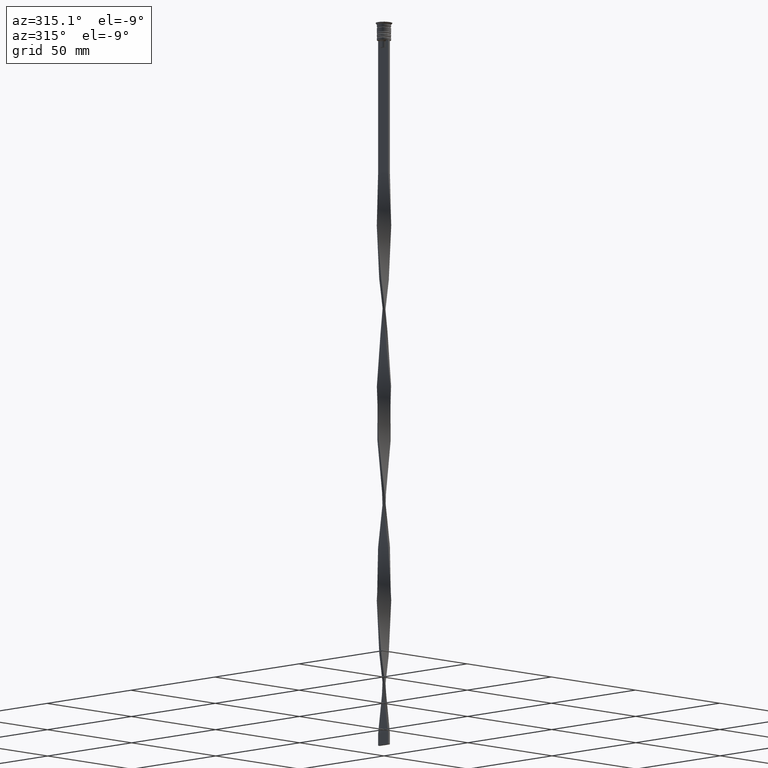
[diagram: clean part render]
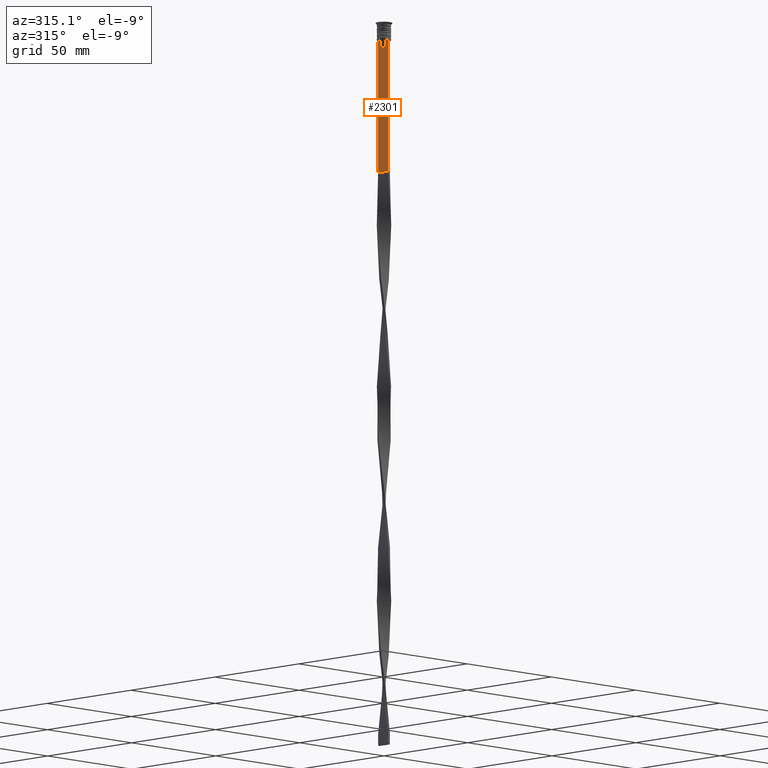
[diagram: same view with one face highlighted and labeled with its STEP entity id]
A machine part, auxiliary view. The second image highlights one B-rep face of the part: STEP entity #2301.
In plain terms, the highlighted planar face has unit normal (-1, 0, 0).
Its self-contained STEP definition (entity closure, byte-faithful):
#66 = EDGE_CURVE ( 'NONE', #172, #1393, #3640, .T. ) ;
#79 = CARTESIAN_POINT ( 'NONE',  ( -0.5000000000000001110, -3.000000000000000000, -7.500000000000000000 ) ) ;
#118 = CARTESIAN_POINT ( 'NONE',  ( -0.5000000000000001110, 3.000000000000000000, -7.500000000000000000 ) ) ;
#124 = CARTESIAN_POINT ( 'NONE',  ( -0.5000000000000001110, -1.307669683062199217, -8.000000000000000000 ) ) ;
#172 = VERTEX_POINT ( 'NONE', #1610 ) ;
#233 = ORIENTED_EDGE ( 'NONE', *, *, #1750, .F. ) ;
#278 = ORIENTED_EDGE ( 'NONE', *, *, #1412, .F. ) ;
#280 = VECTOR ( 'NONE', #1051, 1000.000000000000000 ) ;
#295 = LINE ( 'NONE', #1205, #1422 ) ;
#331 = CARTESIAN_POINT ( 'NONE',  ( -0.5000000000000001110, -3.000000000000000000, -1.417237469701779329 ) ) ;
#390 = DIRECTION ( 'NONE',  ( 0.000000000000000000, 0.000000000000000000, 1.000000000000000000 ) ) ;
#400 = DIRECTION ( 'NONE',  ( 0.000000000000000000, 0.000000000000000000, -1.000000000000000000 ) ) ;
#435 = CARTESIAN_POINT ( 'NONE',  ( -0.5000000000000001110, -1.307669683062199217, 0.000000000000000000 ) ) ;
#450 = CARTESIAN_POINT ( 'NONE',  ( -0.5000000000000001110, 1.307669683062199217, -10.49999999999999822 ) ) ;
#466 = EDGE_CURVE ( 'NONE', #1315, #3943, #3914, .T. ) ;
#475 = LINE ( 'NONE', #734, #280 ) ;
#495 = DIRECTION ( 'NONE',  ( -0.000000000000000000, -0.000000000000000000, 1.000000000000000000 ) ) ;
#497 = CARTESIAN_POINT ( 'NONE',  ( -0.5000000000000001110, 1.484355510416485391, -7.834966642958598015 ) ) ;
#518 = LINE ( 'NONE', #2367, #3222 ) ;
#583 = CARTESIAN_POINT ( 'NONE',  ( -0.5000000000000001110, 3.000000000000000000, -63.50000000000000000 ) ) ;
#585 = CARTESIAN_POINT ( 'NONE',  ( -0.5000000000000001110, -1.307669683062199217, -8.000000000000000000 ) ) ;
#590 = AXIS2_PLACEMENT_3D ( 'NONE', #331, #1548, #390 ) ;
#719 = CARTESIAN_POINT ( 'NONE',  ( -0.5000000000000001110, 1.307669683062199217, 0.000000000000000000 ) ) ;
#734 = CARTESIAN_POINT ( 'NONE',  ( -0.5000000000000001110, -3.000000000000000000, -7.500000000000000000 ) ) ;
#762 = ORIENTED_EDGE ( 'NONE', *, *, #3162, .F. ) ;
#808 = EDGE_CURVE ( 'NONE', #1745, #3280, #1905, .T. ) ;
#829 = ORIENTED_EDGE ( 'NONE', *, *, #3934, .F. ) ;
#848 = VECTOR ( 'NONE', #400, 1000.000000000000000 ) ;
#870 = CARTESIAN_POINT ( 'NONE',  ( -0.5000000000000001110, -3.000000000000000000, -7.500000000000000000 ) ) ;
#878 = EDGE_CURVE ( 'NONE', #3885, #1315, #3552, .T. ) ;
#898 = VERTEX_POINT ( 'NONE', #1316 ) ;
#930 = EDGE_CURVE ( 'NONE', #1274, #1745, #295, .T. ) ;
#1010 = CARTESIAN_POINT ( 'NONE',  ( -0.5000000000000001110, -1.833030277982335532, -7.500000000000000000 ) ) ;
#1050 = EDGE_CURVE ( 'NONE', #2669, #3871, #518, .T. ) ;
#1051 = DIRECTION ( 'NONE',  ( 0.000000000000000000, -1.000000000000000000, 0.000000000000000000 ) ) ;
#1053 = CARTESIAN_POINT ( 'NONE',  ( -0.5000000000000001110, -3.000000000000000000, -63.50000000000000000 ) ) ;
#1122 = CARTESIAN_POINT ( 'NONE',  ( -0.5000000000000001110, 1.307669683062199217, -8.000000000000000000 ) ) ;
#1201 = DIRECTION ( 'NONE',  ( 0.000000000000000000, -1.000000000000000000, 0.000000000000000000 ) ) ;
#1205 = CARTESIAN_POINT ( 'NONE',  ( -0.5000000000000001110, -3.000000000000000000, -1.417237469701779329 ) ) ;
#1226 = VECTOR ( 'NONE', #1201, 1000.000000000000000 ) ;
#1274 = VERTEX_POINT ( 'NONE', #79 ) ;
#1303 = PLANE ( 'NONE',  #590 ) ;
#1315 = VERTEX_POINT ( 'NONE', #1010 ) ;
#1316 = CARTESIAN_POINT ( 'NONE',  ( -0.5000000000000001110, 2.856571371417139904, -7.500000000000000000 ) ) ;
#1374 = DIRECTION ( 'NONE',  ( 0.000000000000000000, -1.000000000000000000, 0.000000000000000000 ) ) ;
#1393 = VERTEX_POINT ( 'NONE', #3187 ) ;
#1412 = EDGE_CURVE ( 'NONE', #2362, #898, #475, .T. ) ;
#1421 = VECTOR ( 'NONE', #1762, 1000.000000000000000 ) ;
#1422 = VECTOR ( 'NONE', #2443, 1000.000000000000000 ) ;
#1438 = EDGE_LOOP ( 'NONE', ( #3866, #2402, #278, #1947, #3919, #3931, #762, #3197, #2279, #233, #3441, #829 ) ) ;
#1481 = LINE ( 'NONE', #2079, #1421 ) ;
#1536 = LINE ( 'NONE', #2735, #1226 ) ;
#1548 = DIRECTION ( 'NONE',  ( -1.000000000000000000, 0.000000000000000000, 0.000000000000000000 ) ) ;
#1610 = CARTESIAN_POINT ( 'NONE',  ( -0.5000000000000001110, 1.833030277982335532, -7.500000000000000000 ) ) ;
#1711 = EDGE_CURVE ( 'NONE', #898, #172, #1963, .T. ) ;
#1745 = VERTEX_POINT ( 'NONE', #1053 ) ;
#1750 = EDGE_CURVE ( 'NONE', #3871, #3885, #3226, .T. ) ;
#1762 = DIRECTION ( 'NONE',  ( 0.000000000000000000, 0.000000000000000000, -1.000000000000000000 ) ) ;
#1804 = CARTESIAN_POINT ( 'NONE',  ( -0.5000000000000001110, -1.484307477388859153, -7.835011508197190722 ) ) ;
#1825 = DIRECTION ( 'NONE',  ( 0.000000000000000000, 1.000000000000000000, 0.000000000000000000 ) ) ;
#1905 = LINE ( 'NONE', #3110, #2779 ) ;
#1947 = ORIENTED_EDGE ( 'NONE', *, *, #3618, .T. ) ;
#1963 = LINE ( 'NONE', #2613, #3026 ) ;
#2076 = VECTOR ( 'NONE', #495, 1000.000000000000000 ) ;
#2079 = CARTESIAN_POINT ( 'NONE',  ( -0.5000000000000001110, 3.000000000000000000, -1.417237469701779329 ) ) ;
#2144 = DIRECTION ( 'NONE',  ( 0.000000000000000000, -1.000000000000000000, 0.000000000000000000 ) ) ;
#2226 = CARTESIAN_POINT ( 'NONE',  ( -0.5000000000000001110, -1.307669683062199217, -10.49999999999999822 ) ) ;
#2279 = ORIENTED_EDGE ( 'NONE', *, *, #878, .F. ) ;
#2301 = ADVANCED_FACE ( 'NONE', ( #3138 ), #1303, .T. ) ;
#2362 = VERTEX_POINT ( 'NONE', #118 ) ;
#2367 = CARTESIAN_POINT ( 'NONE',  ( -0.5000000000000001110, 1.399999999999997691, -10.49999999999999822 ) ) ;
#2402 = ORIENTED_EDGE ( 'NONE', *, *, #1711, .F. ) ;
#2443 = DIRECTION ( 'NONE',  ( 0.000000000000000000, 0.000000000000000000, -1.000000000000000000 ) ) ;
#2613 = CARTESIAN_POINT ( 'NONE',  ( -0.5000000000000001110, -3.000000000000000000, -7.500000000000000000 ) ) ;
#2652 = CARTESIAN_POINT ( 'NONE',  ( -0.5000000000000001110, 1.659046061654642523, -7.667851756010361619 ) ) ;
#2669 = VERTEX_POINT ( 'NONE', #450 ) ;
#2735 = CARTESIAN_POINT ( 'NONE',  ( -0.5000000000000001110, -3.000000000000000000, -7.500000000000000000 ) ) ;
#2779 = VECTOR ( 'NONE', #1825, 1000.000000000000000 ) ;
#2857 = CARTESIAN_POINT ( 'NONE',  ( -0.5000000000000001110, -2.856571371417139904, -7.500000000000000000 ) ) ;
#2891 = LINE ( 'NONE', #719, #848 ) ;
#3026 = VECTOR ( 'NONE', #1374, 1000.000000000000000 ) ;
#3110 = CARTESIAN_POINT ( 'NONE',  ( -0.5000000000000001110, -3.000000000000000000, -63.50000000000000000 ) ) ;
#3138 = FACE_OUTER_BOUND ( 'NONE', #1438, .T. ) ;
#3162 = EDGE_CURVE ( 'NONE', #3943, #1274, #1536, .T. ) ;
#3187 = CARTESIAN_POINT ( 'NONE',  ( -0.5000000000000001110, 1.307669683062199217, -8.000000000000000000 ) ) ;
#3197 = ORIENTED_EDGE ( 'NONE', *, *, #466, .F. ) ;
#3222 = VECTOR ( 'NONE', #3581, 1000.000000000000000 ) ;
#3226 = LINE ( 'NONE', #435, #2076 ) ;
#3280 = VERTEX_POINT ( 'NONE', #583 ) ;
#3423 = CARTESIAN_POINT ( 'NONE',  ( -0.5000000000000001110, 1.833030277982335532, -7.500000000000000000 ) ) ;
#3441 = ORIENTED_EDGE ( 'NONE', *, *, #1050, .F. ) ;
#3552 = B_SPLINE_CURVE_WITH_KNOTS ( 'NONE', 3,
 ( #585, #1804, #3949, #3646 ),
 .UNSPECIFIED., .F., .F.,
 ( 4, 4 ),
 ( 0.007225659348748070081, 0.007950554640278040958 ),
 .UNSPECIFIED. ) ;
#3581 = DIRECTION ( 'NONE',  ( 0.000000000000000000, -1.000000000000000000, 0.000000000000000000 ) ) ;
#3618 = EDGE_CURVE ( 'NONE', #2362, #3280, #1481, .T. ) ;
#3640 = B_SPLINE_CURVE_WITH_KNOTS ( 'NONE', 3,
 ( #3423, #2652, #497, #1122 ),
 .UNSPECIFIED., .F., .F.,
 ( 4, 4 ),
 ( 0.003278537493109840491, 0.004003794023484932504 ),
 .UNSPECIFIED. ) ;
#3646 = CARTESIAN_POINT ( 'NONE',  ( -0.5000000000000001110, -1.833030277982335532, -7.500000000000000000 ) ) ;
#3656 = VECTOR ( 'NONE', #2144, 1000.000000000000000 ) ;
#3866 = ORIENTED_EDGE ( 'NONE', *, *, #66, .F. ) ;
#3871 = VERTEX_POINT ( 'NONE', #2226 ) ;
#3885 = VERTEX_POINT ( 'NONE', #124 ) ;
#3914 = LINE ( 'NONE', #870, #3656 ) ;
#3919 = ORIENTED_EDGE ( 'NONE', *, *, #808, .F. ) ;
#3931 = ORIENTED_EDGE ( 'NONE', *, *, #930, .F. ) ;
#3934 = EDGE_CURVE ( 'NONE', #1393, #2669, #2891, .T. ) ;
#3943 = VERTEX_POINT ( 'NONE', #2857 ) ;
#3949 = CARTESIAN_POINT ( 'NONE',  ( -0.5000000000000001110, -1.659011726860414093, -7.667884880598472286 ) ) ;